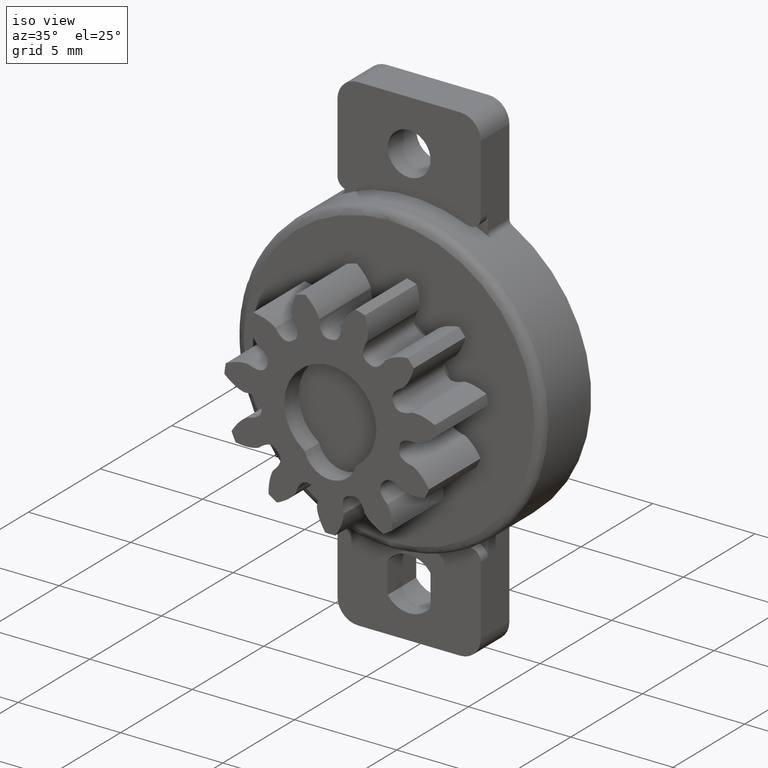
[diagram: clean part render]
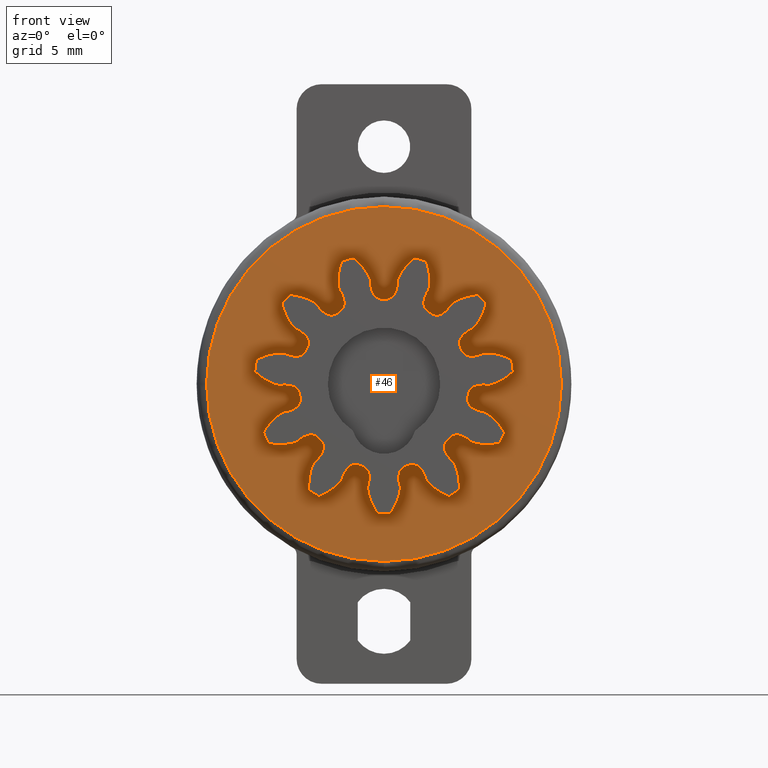
[diagram: tour spotlight — one face highlighted and labeled with its STEP entity id]
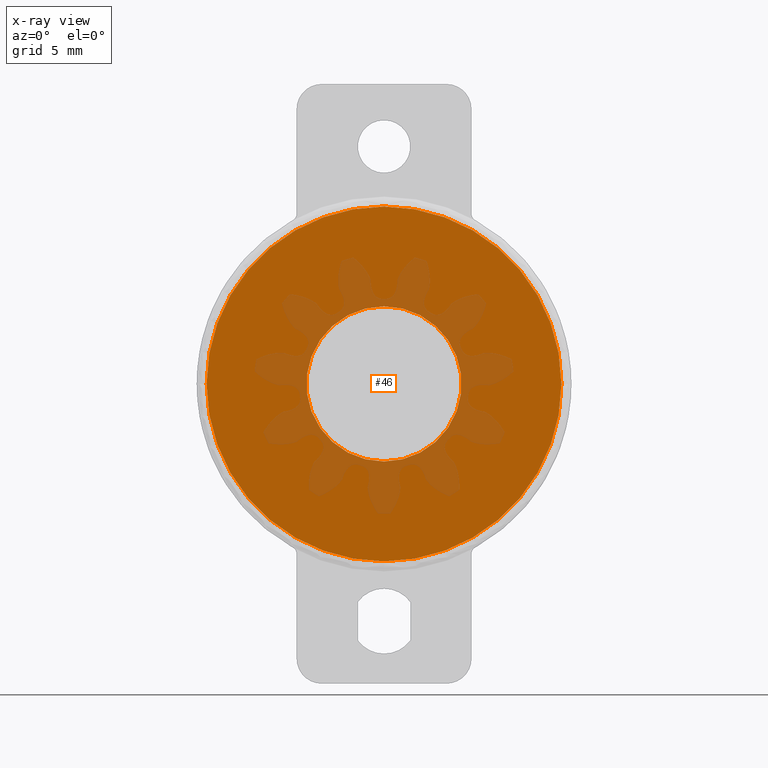
[diagram: x-ray of the same camera — body ghosted, this tour face saturated]
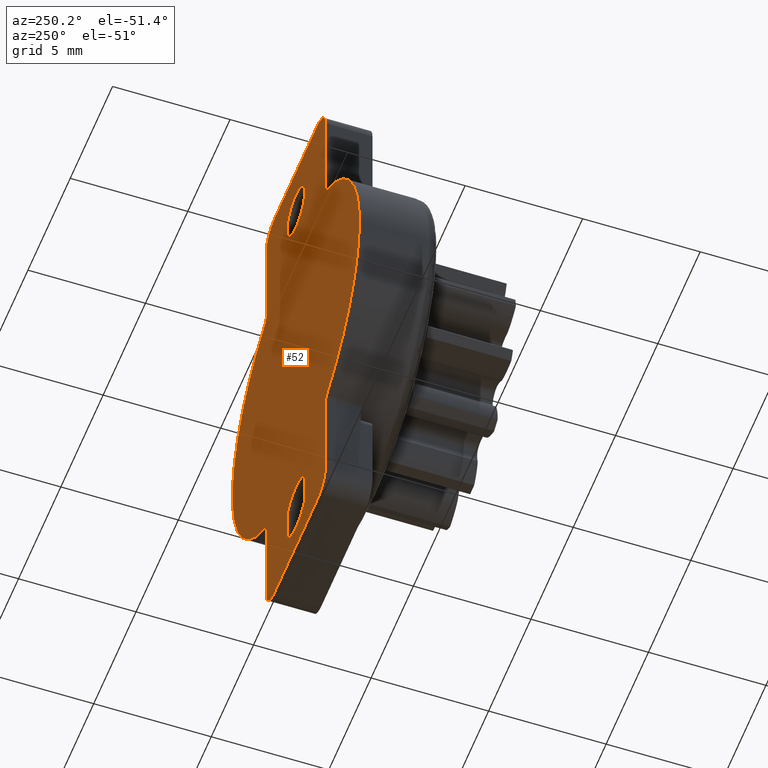
[diagram: tour spotlight — one face highlighted and labeled with its STEP entity id]
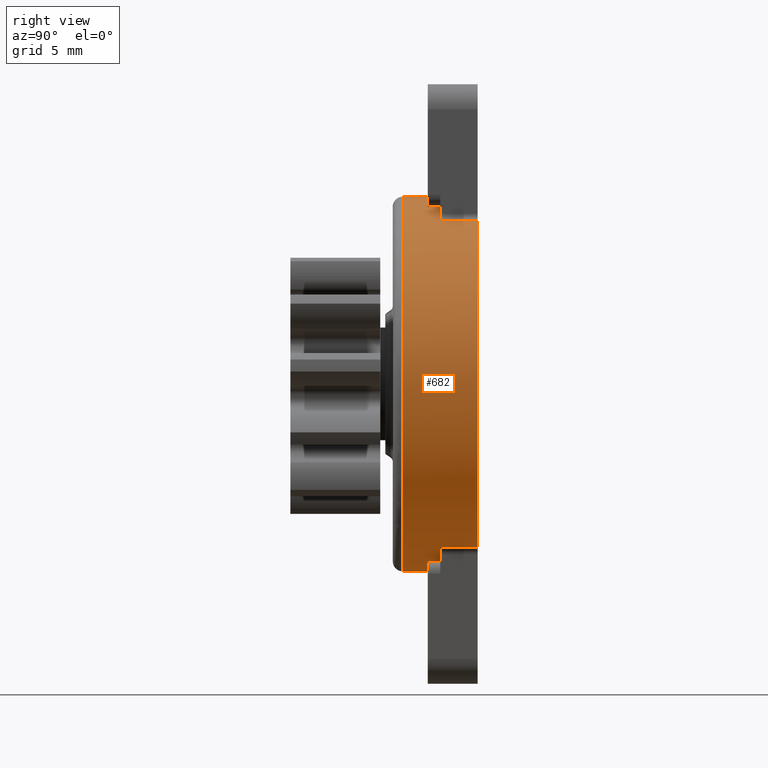
[diagram: tour spotlight — one face highlighted and labeled with its STEP entity id]
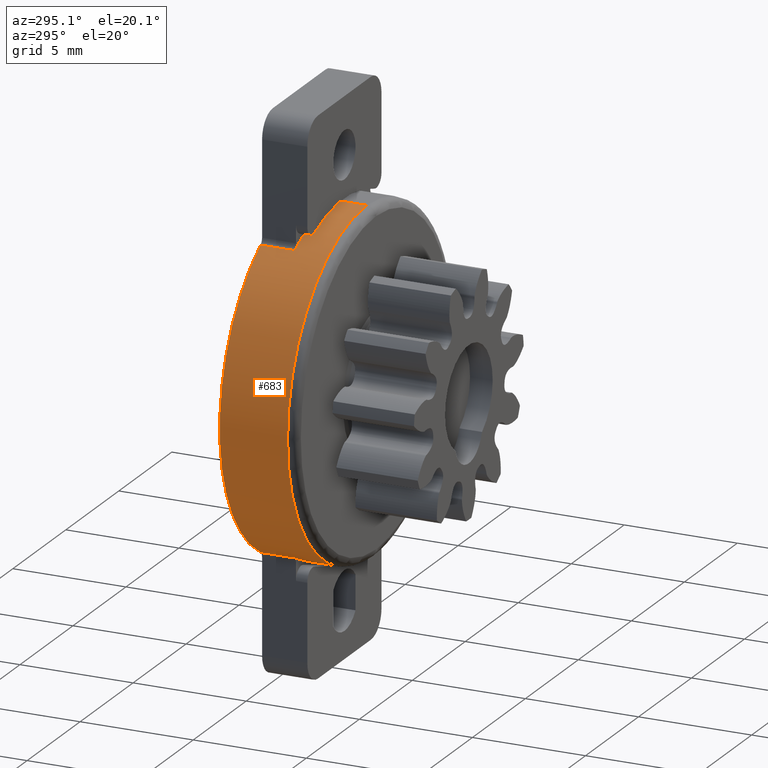
[diagram: tour spotlight — one face highlighted and labeled with its STEP entity id]
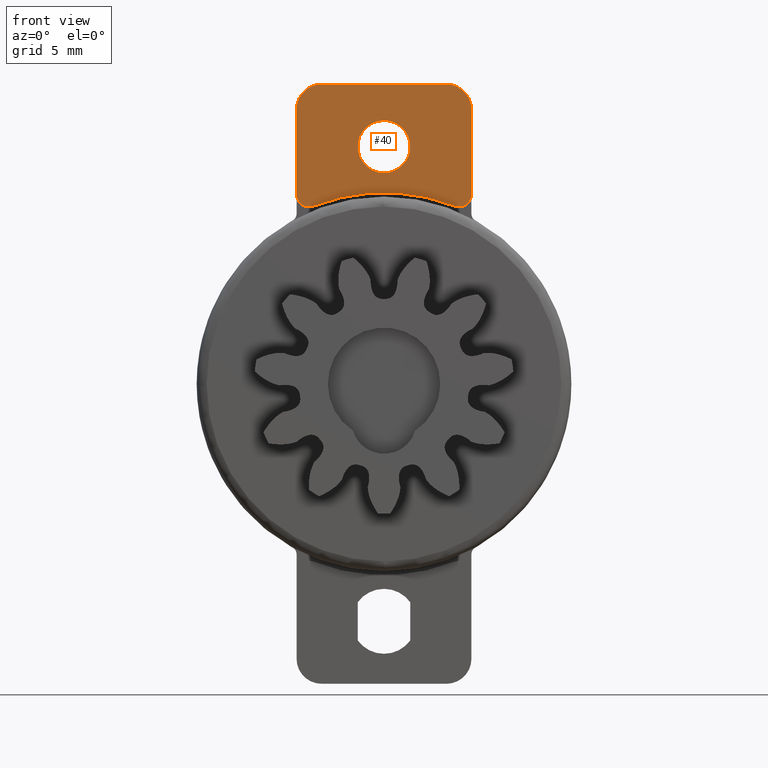
[diagram: tour spotlight — one face highlighted and labeled with its STEP entity id]
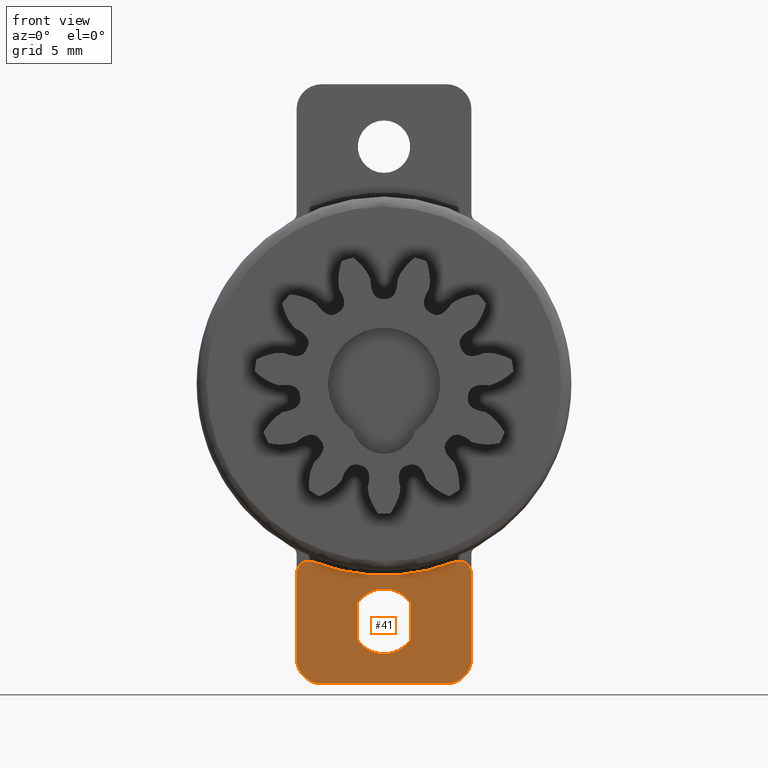
[diagram: tour spotlight — one face highlighted and labeled with its STEP entity id]
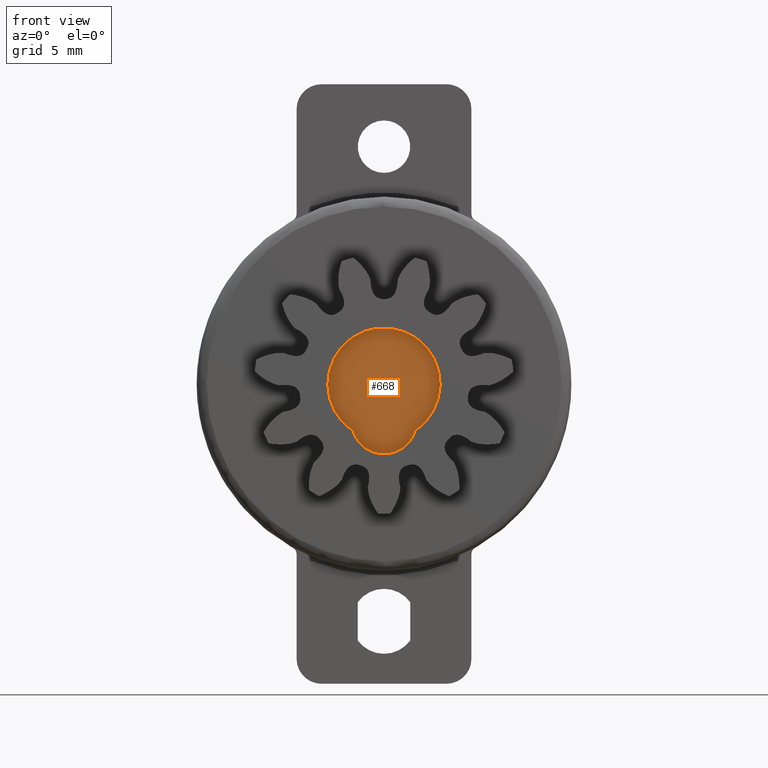
[diagram: tour spotlight — one face highlighted and labeled with its STEP entity id]
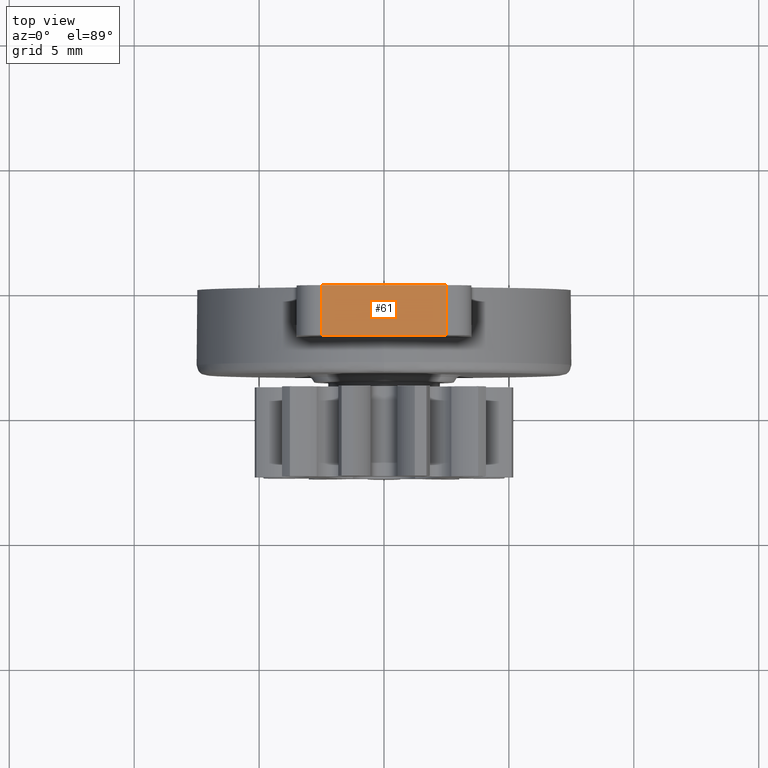
[diagram: tour spotlight — one face highlighted and labeled with its STEP entity id]
A machine part: a face-by-face anatomy tour. The part has 644 B-rep faces; the first image is the clean iso view, then the 8 largest visible faces are spotlighted one at a time (largest first), each with its STEP entity span.

Face 1 — front view, entity #46. An x-ray twin of the same camera follows (body ghosted, this face saturated) — the face is partly hidden behind the body. In plain terms, the highlighted planar face has unit normal (-0, 1, 0).
Definition (entity closure, byte-faithful):
#46=ADVANCED_FACE('',(#748,#749),#747,.F.);
#747=PLANE('',#7168);
#748=FACE_OUTER_BOUND('',#7169,.T.);
#749=FACE_BOUND('',#7170,.T.);
#7165=CARTESIAN_POINT('',(-1.47570728805E+01,-3.40000000000E+00,-9.23000000000E+00));
#7166=DIRECTION('',(-0.00000000000E+00,1.00000000000E+00,0.00000000000E+00));
#7167=DIRECTION('',(0.00000000000E+00,-0.00000000000E+00,1.00000000000E+00));
#7168=AXIS2_PLACEMENT_3D('',#7165,#7166,#7167);
#7169=EDGE_LOOP('',(#10501,#10502));
#7170=EDGE_LOOP('',(#10503,#10504));
#10501=ORIENTED_EDGE('',*,*,#14314,.T.);
#10502=ORIENTED_EDGE('',*,*,#14315,.T.);
#10503=ORIENTED_EDGE('',*,*,#14316,.F.);
#10504=ORIENTED_EDGE('',*,*,#14317,.F.);
#14314=EDGE_CURVE('',#16459,#16460,#16461,.T.);
#14315=EDGE_CURVE('',#16460,#16459,#16467,.T.);
#14316=EDGE_CURVE('',#16473,#16474,#16475,.T.);
#14317=EDGE_CURVE('',#16474,#16473,#16481,.T.);
#16459=VERTEX_POINT('',#29083);
#16460=VERTEX_POINT('',#29084);
#16461=CIRCLE('',#29088,7.10000000000E+00);
#16467=CIRCLE('',#29092,7.10000000000E+00);
#16473=VERTEX_POINT('',#29093);
#16474=VERTEX_POINT('',#29094);
#16475=CIRCLE('',#29098,3.10703740000E+00);
#16481=CIRCLE('',#29102,3.10703740000E+00);
#29083=CARTESIAN_POINT('',(0.00000000000E+00,-3.40000000000E+00,-7.10000000000E+00));
#29084=CARTESIAN_POINT('',(2.96059473233E-16,-3.40000000000E+00,7.10000000000E+00));
#29085=CARTESIAN_POINT('',(0.00000000000E+00,-3.40000000000E+00,0.00000000000E+00));
#29086=DIRECTION('',(0.00000000000E+00,-1.00000000000E+00,-0.00000000000E+00));
#29087=DIRECTION('',(-1.22460635382E-16,0.00000000000E+00,-1.00000000000E+00));
#29088=AXIS2_PLACEMENT_3D('',#29085,#29086,#29087);
#29089=CARTESIAN_POINT('',(0.00000000000E+00,-3.40000000000E+00,0.00000000000E+00));
#29090=DIRECTION('',(0.00000000000E+00,-1.00000000000E+00,-0.00000000000E+00));
#29091=DIRECTION('',(-1.22460635382E-16,0.00000000000E+00,-1.00000000000E+00));
#29092=AXIS2_PLACEMENT_3D('',#29089,#29090,#29091);
#29093=CARTESIAN_POINT('',(-1.48029736617E-16,-3.40000000000E+00,3.10703740000E+00));
#29094=CARTESIAN_POINT('',(0.00000000000E+00,-3.40000000000E+00,-3.10703740000E+00));
#29095=CARTESIAN_POINT('',(0.00000000000E+00,-3.40000000000E+00,0.00000000000E+00));
#29096=DIRECTION('',(0.00000000000E+00,-1.00000000000E+00,-0.00000000000E+00));
#29097=DIRECTION('',(-1.22460635382E-16,0.00000000000E+00,-1.00000000000E+00));
#29098=AXIS2_PLACEMENT_3D('',#29095,#29096,#29097);
#29099=CARTESIAN_POINT('',(0.00000000000E+00,-3.40000000000E+00,0.00000000000E+00));
#29100=DIRECTION('',(0.00000000000E+00,-1.00000000000E+00,-0.00000000000E+00));
#29101=DIRECTION('',(-1.22460635382E-16,0.00000000000E+00,-1.00000000000E+00));
#29102=AXIS2_PLACEMENT_3D('',#29099,#29100,#29101);

Face 2 — auxiliary view, entity #52. In plain terms, the highlighted planar face has unit normal (-0, 1, 0).
Definition (entity closure, byte-faithful):
#52=ADVANCED_FACE('',(#809,#810,#811),#808,.T.);
#808=PLANE('',#7199);
#809=FACE_OUTER_BOUND('',#7200,.T.);
#810=FACE_BOUND('',#7201,.T.);
#811=FACE_BOUND('',#7202,.T.);
#7196=CARTESIAN_POINT('',(-9.00000085831E+00,0.00000000000E+00,-1.44000002649E+01));
#7197=DIRECTION('',(-0.00000000000E+00,1.00000000000E+00,0.00000000000E+00));
#7198=DIRECTION('',(0.00000000000E+00,0.00000000000E+00,1.00000000000E+00));
#7199=AXIS2_PLACEMENT_3D('',#7196,#7197,#7198);
#7200=EDGE_LOOP('',(#10525,#10526,#10527,#10528,#10529,#10530,#10531,#10532,#10533,#10534,#10535,#10536,#10537,#10538,#10539,#10540));
#7201=EDGE_LOOP('',(#10541,#10542));
#7202=EDGE_LOOP('',(#10543,#10544,#10545,#10546));
#10525=ORIENTED_EDGE('',*,*,#14325,.F.);
#10526=ORIENTED_EDGE('',*,*,#14326,.F.);
#10527=ORIENTED_EDGE('',*,*,#14327,.F.);
#10528=ORIENTED_EDGE('',*,*,#14328,.F.);
#10529=ORIENTED_EDGE('',*,*,#14329,.F.);
#10530=ORIENTED_EDGE('',*,*,#14330,.T.);
#10531=ORIENTED_EDGE('',*,*,#14331,.F.);
#10532=ORIENTED_EDGE('',*,*,#14332,.T.);
#10533=ORIENTED_EDGE('',*,*,#14333,.F.);
#10534=ORIENTED_EDGE('',*,*,#14334,.F.);
#10535=ORIENTED_EDGE('',*,*,#14335,.F.);
#10536=ORIENTED_EDGE('',*,*,#14336,.F.);
#10537=ORIENTED_EDGE('',*,*,#14337,.F.);
#10538=ORIENTED_EDGE('',*,*,#14338,.T.);
#10539=ORIENTED_EDGE('',*,*,#14339,.F.);
#10540=ORIENTED_EDGE('',*,*,#14340,.T.);
#10541=ORIENTED_EDGE('',*,*,#14341,.T.);
#10542=ORIENTED_EDGE('',*,*,#14342,.T.);
#10543=ORIENTED_EDGE('',*,*,#14319,.T.);
#10544=ORIENTED_EDGE('',*,*,#14298,.T.);
#10545=ORIENTED_EDGE('',*,*,#14322,.T.);
#10546=ORIENTED_EDGE('',*,*,#14321,.T.);
#14298=EDGE_CURVE('',#16336,#16343,#16350,.T.);
#14319=EDGE_CURVE('',#16487,#16336,#16494,.T.);
#14321=EDGE_CURVE('',#16500,#16487,#16507,.T.);
#14322=EDGE_CURVE('',#16343,#16500,#16513,.T.);
#14325=EDGE_CURVE('',#16531,#16532,#16533,.T.);
#14326=EDGE_CURVE('',#16539,#16531,#16540,.T.);
#14327=EDGE_CURVE('',#16546,#16539,#16547,.T.);
#14328=EDGE_CURVE('',#16553,#16546,#16554,.T.);
#14329=EDGE_CURVE('',#16560,#16553,#16561,.T.);
#14330=EDGE_CURVE('',#16560,#16567,#16568,.T.);
#14331=EDGE_CURVE('',#16574,#16567,#16575,.T.);
#14332=EDGE_CURVE('',#16574,#16581,#16582,.T.);
#14333=EDGE_CURVE('',#16588,#16581,#16589,.T.);
#14334=EDGE_CURVE('',#16595,#16588,#16596,.T.);
#14335=EDGE_CURVE('',#16602,#16595,#16603,.T.);
#14336=EDGE_CURVE('',#16609,#16602,#16610,.T.);
#14337=EDGE_CURVE('',#16616,#16609,#16617,.T.);
#14338=EDGE_CURVE('',#16616,#16623,#16624,.T.);
#14339=EDGE_CURVE('',#16630,#16623,#16631,.T.);
#14340=EDGE_CURVE('',#16630,#16532,#16637,.T.);
#14341=EDGE_CURVE('',#16643,#16644,#16645,.T.);
#14342=EDGE_CURVE('',#16644,#16643,#16651,.T.);
#16336=VERTEX_POINT('',#29002);
#16343=VERTEX_POINT('',#29006);
#16350=CIRCLE('',#29013,1.30000012398E+00);
#16487=VERTEX_POINT('',#29103);
#16494=LINE('',#29107,#29108);
#16500=VERTEX_POINT('',#29110);
#16507=CIRCLE('',#29117,1.30000012398E+00);
#16513=LINE('',#29118,#29119);
#16531=VERTEX_POINT('',#29127);
#16532=VERTEX_POINT('',#29128);
#16533=LINE('',#29129,#29130);
#16539=VERTEX_POINT('',#29132);
#16540=CIRCLE('',#29136,1.00000009537E+00);
#16546=VERTEX_POINT('',#29137);
#16547=LINE('',#29138,#29139);
#16553=VERTEX_POINT('',#29141);
#16554=CIRCLE('',#29145,1.00000009537E+00);
#16560=VERTEX_POINT('',#29146);
#16561=LINE('',#29147,#29148);
#16567=VERTEX_POINT('',#29150);
#16568=CIRCLE('',#29154,3.00000000000E-01);
#16574=VERTEX_POINT('',#29155);
#16575=CIRCLE('',#29159,7.50000071526E+00);
#16581=VERTEX_POINT('',#29160);
#16582=CIRCLE('',#29164,3.00000000000E-01);
#16588=VERTEX_POINT('',#29165);
#16589=LINE('',#29166,#29167);
#16595=VERTEX_POINT('',#29169);
#16596=CIRCLE('',#29173,1.00000009537E+00);
#16602=VERTEX_POINT('',#29174);
#16603=LINE('',#29175,#29176);
#16609=VERTEX_POINT('',#29178);
#16610=CIRCLE('',#29182,1.00000009537E+00);
#16616=VERTEX_POINT('',#29183);
#16617=LINE('',#29184,#29185);
#16623=VERTEX_POINT('',#29187);
#16624=CIRCLE('',#29191,3.00000000000E-01);
#16630=VERTEX_POINT('',#29192);
#16631=CIRCLE('',#29196,7.50000071526E+00);
#16637=CIRCLE('',#29200,3.00000000000E-01);
#16643=VERTEX_POINT('',#29201);
#16644=VERTEX_POINT('',#29202);
#16645=CIRCLE('',#29206,1.05000010014E+00);
#16651=CIRCLE('',#29210,1.05000010014E+00);
#29002=CARTESIAN_POINT('',(1.05000000000E+00,0.00000000000E+00,-8.73351440000E+00));
#29006=CARTESIAN_POINT('',(-1.05000000000E+00,0.00000000000E+00,-8.73351440000E+00));
#29010=CARTESIAN_POINT('',(0.00000000000E+00,0.00000000000E+00,-9.50000000000E+00));
#29011=DIRECTION('',(0.00000000000E+00,-1.00000000000E+00,0.00000000000E+00));
#29012=DIRECTION('',(-0.00000000000E+00,-0.00000000000E+00,-1.00000000000E+00));
#29013=AXIS2_PLACEMENT_3D('',#29010,#29011,#29012);
#29103=CARTESIAN_POINT('',(1.05000007969E+00,0.00000000000E+00,-1.02664855869E+01));
#29107=CARTESIAN_POINT('',(1.05000000000E+00,0.00000000000E+00,-1.02664855869E+01));
#29108=VECTOR('',#29109,1.53297118694E+00);
#29109=DIRECTION('',(0.00000000000E+00,0.00000000000E+00,1.00000000000E+00));
#29110=CARTESIAN_POINT('',(-1.05000000000E+00,0.00000000000E+00,-1.02664856000E+01));
#29114=CARTESIAN_POINT('',(0.00000000000E+00,0.00000000000E+00,-9.50000000000E+00));
#29115=DIRECTION('',(0.00000000000E+00,-1.00000000000E+00,-0.00000000000E+00));
#29116=DIRECTION('',(8.07692291968E-01,0.00000000000E+00,-5.89604241416E-01));
#29117=AXIS2_PLACEMENT_3D('',#29114,#29115,#29116);
#29118=CARTESIAN_POINT('',(-1.05000000000E+00,0.00000000000E+00,-8.73351440000E+00));
#29119=VECTOR('',#29120,1.53297120000E+00);
#29120=DIRECTION('',(0.00000000000E+00,0.00000000000E+00,-1.00000000000E+00));
#29127=CARTESIAN_POINT('',(-3.50000009537E+00,0.00000000000E+00,1.10000000524E+01));
#29128=CARTESIAN_POINT('',(-3.50000000000E+00,0.00000000000E+00,6.81175536540E+00));
#29129=CARTESIAN_POINT('',(-3.50000000000E+00,0.00000000000E+00,1.10000000524E+01));
#29130=VECTOR('',#29131,4.18824468696E+00);
#29131=DIRECTION('',(0.00000000000E+00,0.00000000000E+00,-1.00000000000E+00));
#29132=CARTESIAN_POINT('',(-2.50000000000E+00,0.00000000000E+00,1.20000016000E+01));
#29133=CARTESIAN_POINT('',(-2.50000000000E+00,0.00000000000E+00,1.10000000000E+01));
#29134=DIRECTION('',(0.00000000000E+00,-1.00000000000E+00,0.00000000000E+00));
#29135=DIRECTION('',(-0.00000000000E+00,-0.00000000000E+00,-1.00000000000E+00));
#29136=AXIS2_PLACEMENT_3D('',#29133,#29134,#29135);
#29137=CARTESIAN_POINT('',(2.50000008727E+00,0.00000000000E+00,1.20000000954E+01));
#29138=CARTESIAN_POINT('',(2.50000008727E+00,0.00000000000E+00,1.20000016000E+01));
#29139=VECTOR('',#29140,5.00000008727E+00);
#29140=DIRECTION('',(-1.00000000000E+00,0.00000000000E+00,0.00000000000E+00));
#29141=CARTESIAN_POINT('',(3.50000000000E+00,0.00000000000E+00,1.10000000000E+01));
#29142=CARTESIAN_POINT('',(2.50000000000E+00,0.00000000000E+00,1.10000000000E+01));
#29143=DIRECTION('',(0.00000000000E+00,-1.00000000000E+00,0.00000000000E+00));
#29144=DIRECTION('',(-0.00000000000E+00,-0.00000000000E+00,-1.00000000000E+00));
#29145=AXIS2_PLACEMENT_3D('',#29142,#29143,#29144);
#29146=CARTESIAN_POINT('',(3.50000000000E+00,0.00000000000E+00,6.81175536540E+00));
#29147=CARTESIAN_POINT('',(3.50000000000E+00,0.00000000000E+00,6.81175536540E+00));
#29148=VECTOR('',#29149,4.18824463460E+00);
#29149=DIRECTION('',(0.00000000000E+00,0.00000000000E+00,1.00000000000E+00));
#29150=CARTESIAN_POINT('',(3.65384616725E+00,0.00000000000E+00,6.54976479844E+00));
#29151=CARTESIAN_POINT('',(3.80000000000E+00,0.00000000000E+00,6.81175536540E+00));
#29152=DIRECTION('',(0.00000000000E+00,-1.00000000000E+00,0.00000000000E+00));
#29153=DIRECTION('',(-0.00000000000E+00,-0.00000000000E+00,-1.00000000000E+00));
#29154=AXIS2_PLACEMENT_3D('',#29151,#29152,#29153);
#29155=CARTESIAN_POINT('',(3.65384616725E+00,0.00000000000E+00,-6.54976479844E+00));
#29156=CARTESIAN_POINT('',(0.00000000000E+00,0.00000000000E+00,0.00000000000E+00));
#29157=DIRECTION('',(0.00000000000E+00,-1.00000000000E+00,0.00000000000E+00));
#29158=DIRECTION('',(-0.00000000000E+00,-0.00000000000E+00,-1.00000000000E+00));
#29159=AXIS2_PLACEMENT_3D('',#29156,#29157,#29158);
#29160=CARTESIAN_POINT('',(3.50000000000E+00,0.00000000000E+00,-6.81175536540E+00));
#29161=CARTESIAN_POINT('',(3.80000000000E+00,0.00000000000E+00,-6.81175536540E+00));
#29162=DIRECTION('',(0.00000000000E+00,-1.00000000000E+00,0.00000000000E+00));
#29163=DIRECTION('',(-0.00000000000E+00,-0.00000000000E+00,-1.00000000000E+00));
#29164=AXIS2_PLACEMENT_3D('',#29161,#29162,#29163);
#29165=CARTESIAN_POINT('',(3.50000009537E+00,0.00000000000E+00,-1.09999999476E+01));
#29166=CARTESIAN_POINT('',(3.50000000000E+00,0.00000000000E+00,-1.09999999476E+01));
#29167=VECTOR('',#29168,4.18824458224E+00);
#29168=DIRECTION('',(0.00000000000E+00,0.00000000000E+00,1.00000000000E+00));
#29169=CARTESIAN_POINT('',(2.50000000000E+00,0.00000000000E+00,-1.20000000000E+01));
#29170=CARTESIAN_POINT('',(2.50000000000E+00,0.00000000000E+00,-1.10000000000E+01));
#29171=DIRECTION('',(0.00000000000E+00,-1.00000000000E+00,0.00000000000E+00));
#29172=DIRECTION('',(-0.00000000000E+00,-0.00000000000E+00,-1.00000000000E+00));
#29173=AXIS2_PLACEMENT_3D('',#29170,#29171,#29172);
#29174=CARTESIAN_POINT('',(-2.50000000000E+00,0.00000000000E+00,-1.20000000954E+01));
#29175=CARTESIAN_POINT('',(-2.50000000000E+00,0.00000000000E+00,-1.20000000000E+01));
#29176=VECTOR('',#29177,5.00000000000E+00);
#29177=DIRECTION('',(1.00000000000E+00,0.00000000000E+00,0.00000000000E+00));
#29178=CARTESIAN_POINT('',(-3.50000000000E+00,0.00000000000E+00,-1.10000000000E+01));
#29179=CARTESIAN_POINT('',(-2.50000000000E+00,0.00000000000E+00,-1.10000000000E+01));
#29180=DIRECTION('',(0.00000000000E+00,-1.00000000000E+00,0.00000000000E+00));
#29181=DIRECTION('',(-0.00000000000E+00,-0.00000000000E+00,-1.00000000000E+00));
#29182=AXIS2_PLACEMENT_3D('',#29179,#29180,#29181);
#29183=CARTESIAN_POINT('',(-3.50000000000E+00,0.00000000000E+00,-6.81175536540E+00));
#29184=CARTESIAN_POINT('',(-3.50000000000E+00,0.00000000000E+00,-6.81175536540E+00));
#29185=VECTOR('',#29186,4.18824463460E+00);
#29186=DIRECTION('',(0.00000000000E+00,0.00000000000E+00,-1.00000000000E+00));
#29187=CARTESIAN_POINT('',(-3.65384616725E+00,0.00000000000E+00,-6.54976479844E+00));
#29188=CARTESIAN_POINT('',(-3.80000000000E+00,0.00000000000E+00,-6.81175536540E+00));
#29189=DIRECTION('',(0.00000000000E+00,-1.00000000000E+00,0.00000000000E+00));
#29190=DIRECTION('',(-0.00000000000E+00,-0.00000000000E+00,-1.00000000000E+00));
#29191=AXIS2_PLACEMENT_3D('',#29188,#29189,#29190);
#29192=CARTESIAN_POINT('',(-3.65384616725E+00,0.00000000000E+00,6.54976479844E+00));
#29193=CARTESIAN_POINT('',(0.00000000000E+00,0.00000000000E+00,0.00000000000E+00));
#29194=DIRECTION('',(0.00000000000E+00,-1.00000000000E+00,0.00000000000E+00));
#29195=DIRECTION('',(-0.00000000000E+00,-0.00000000000E+00,-1.00000000000E+00));
#29196=AXIS2_PLACEMENT_3D('',#29193,#29194,#29195);
#29197=CARTESIAN_POINT('',(-3.80000000000E+00,0.00000000000E+00,6.81175536540E+00));
#29198=DIRECTION('',(0.00000000000E+00,-1.00000000000E+00,0.00000000000E+00));
#29199=DIRECTION('',(-0.00000000000E+00,-0.00000000000E+00,-1.00000000000E+00));
#29200=AXIS2_PLACEMENT_3D('',#29197,#29198,#29199);
#29201=CARTESIAN_POINT('',(0.00000000000E+00,0.00000000000E+00,1.05500001001E+01));
#29202=CARTESIAN_POINT('',(2.59052039079E-16,0.00000000000E+00,8.44999989986E+00));
#29203=CARTESIAN_POINT('',(0.00000000000E+00,0.00000000000E+00,9.50000000000E+00));
#29204=DIRECTION('',(0.00000000000E+00,-1.00000000000E+00,0.00000000000E+00));
#29205=DIRECTION('',(-1.22460635382E-16,0.00000000000E+00,1.00000000000E+00));
#29206=AXIS2_PLACEMENT_3D('',#29203,#29204,#29205);
#29207=CARTESIAN_POINT('',(0.00000000000E+00,0.00000000000E+00,9.50000000000E+00));
#29208=DIRECTION('',(0.00000000000E+00,-1.00000000000E+00,0.00000000000E+00));
#29209=DIRECTION('',(-1.22460635382E-16,0.00000000000E+00,1.00000000000E+00));
#29210=AXIS2_PLACEMENT_3D('',#29207,#29208,#29209);

Face 3 — right view, entity #682. In plain terms, the highlighted cylindrical surface (partial cylindrical patch) has radius 7.5 mm, axis along (-0, 1, 0).
Definition (entity closure, byte-faithful):
#682=ADVANCED_FACE('',(#7113),#7112,.T.);
#7112=CYLINDRICAL_SURFACE('',#10451,7.50000071526E+00);
#7113=FACE_OUTER_BOUND('',#10452,.T.);
#10448=CARTESIAN_POINT('',(0.00000000000E+00,9.98500000000E+02,0.00000000000E+00));
#10449=DIRECTION('',(-0.00000000000E+00,1.00000000000E+00,0.00000000000E+00));
#10450=DIRECTION('',(0.00000000000E+00,0.00000000000E+00,1.00000000000E+00));
#10451=AXIS2_PLACEMENT_3D('',#10448,#10449,#10450);
#10452=EDGE_LOOP('',(#14258,#14259,#14260,#14261,#14262,#14263,#14264,#14265));
#14258=ORIENTED_EDGE('',*,*,#14303,.T.);
#14259=ORIENTED_EDGE('',*,*,#14358,.T.);
#14260=ORIENTED_EDGE('',*,*,#14331,.T.);
#14261=ORIENTED_EDGE('',*,*,#14361,.T.);
#14262=ORIENTED_EDGE('',*,*,#14345,.T.);
#14263=ORIENTED_EDGE('',*,*,#16180,.F.);
#14264=ORIENTED_EDGE('',*,*,#16177,.F.);
#14265=ORIENTED_EDGE('',*,*,#16181,.T.);
#14303=EDGE_CURVE('',#16384,#16377,#16385,.T.);
#14331=EDGE_CURVE('',#16574,#16567,#16575,.T.);
#14345=EDGE_CURVE('',#16672,#16665,#16673,.T.);
#14358=EDGE_CURVE('',#16377,#16574,#16756,.T.);
#14361=EDGE_CURVE('',#16567,#16672,#16774,.T.);
#16177=EDGE_CURVE('',#28857,#28850,#28870,.T.);
#16180=EDGE_CURVE('',#28850,#16665,#28888,.T.);
#16181=EDGE_CURVE('',#28857,#16384,#28894,.T.);
#16377=VERTEX_POINT('',#29027);
#16384=VERTEX_POINT('',#29032);
#16385=CIRCLE('',#29036,7.50000002407E+00);
#16567=VERTEX_POINT('',#29150);
#16574=VERTEX_POINT('',#29155);
#16575=CIRCLE('',#29159,7.50000071526E+00);
#16665=VERTEX_POINT('',#29217);
#16672=VERTEX_POINT('',#29222);
#16673=CIRCLE('',#29226,7.50000002407E+00);
#16756=LINE('',#29272,#29273);
#16774=LINE('',#29281,#29282);
#28850=VERTEX_POINT('',#36012);
#28857=VERTEX_POINT('',#36016);
#28870=CIRCLE('',#36027,7.50000002407E+00);
#28888=(BOUNDED_CURVE() B_SPLINE_CURVE(1,(#36032,#36033),.UNSPECIFIED.,.F.,.F.) B_SPLINE_CURVE_WITH_KNOTS((2,2),(8.33333233997E-02,5.00000007000E-01),.UNSPECIFIED.) CURVE() GEOMETRIC_REPRESENTATION_ITEM() RATIONAL_B_SPLINE_CURVE((1.00000000000E+00,1.00000000000E+00)) REPRESENTATION_ITEM('') );
#28894=(BOUNDED_CURVE() B_SPLINE_CURVE(1,(#36034,#36035),.UNSPECIFIED.,.F.,.F.) B_SPLINE_CURVE_WITH_KNOTS((2,2),(8.33333333333E-02,5.00000011100E-01),.UNSPECIFIED.) CURVE() GEOMETRIC_REPRESENTATION_ITEM() RATIONAL_B_SPLINE_CURVE((7.50000000000E-01,7.50000000000E-01)) REPRESENTATION_ITEM('') );
#29027=CARTESIAN_POINT('',(3.65384583052E+00,-1.49999992008E+00,-6.54976419483E+00));
#29032=CARTESIAN_POINT('',(-1.71430656871E-08,-1.49999992008E+00,-7.50000002407E+00));
#29033=CARTESIAN_POINT('',(0.00000000000E+00,-1.49999992008E+00,0.00000000000E+00));
#29034=DIRECTION('',(0.00000000000E+00,-1.00000000000E+00,0.00000000000E+00));
#29035=DIRECTION('',(-0.00000000000E+00,-0.00000000000E+00,1.00000000000E+00));
#29036=AXIS2_PLACEMENT_3D('',#29033,#29034,#29035);
#29150=CARTESIAN_POINT('',(3.65384616725E+00,0.00000000000E+00,6.54976479844E+00));
#29155=CARTESIAN_POINT('',(3.65384616725E+00,0.00000000000E+00,-6.54976479844E+00));
#29156=CARTESIAN_POINT('',(0.00000000000E+00,0.00000000000E+00,0.00000000000E+00));
#29157=DIRECTION('',(0.00000000000E+00,-1.00000000000E+00,0.00000000000E+00));
#29158=DIRECTION('',(-0.00000000000E+00,-0.00000000000E+00,-1.00000000000E+00));
#29159=AXIS2_PLACEMENT_3D('',#29156,#29157,#29158);
#29217=CARTESIAN_POINT('',(0.00000000000E+00,-1.49999992008E+00,7.50000002407E+00));
#29222=CARTESIAN_POINT('',(3.65384616725E+00,-1.50000000000E+00,6.54976479844E+00));
#29223=CARTESIAN_POINT('',(0.00000000000E+00,-1.49999992008E+00,0.00000000000E+00));
#29224=DIRECTION('',(0.00000000000E+00,-1.00000000000E+00,0.00000000000E+00));
#29225=DIRECTION('',(4.87179442505E-01,0.00000000000E+00,8.73301889841E-01));
#29226=AXIS2_PLACEMENT_3D('',#29223,#29224,#29225);
#29272=CARTESIAN_POINT('',(3.65384616725E+00,-1.49999992008E+00,-6.54976479844E+00));
#29273=VECTOR('',#29274,1.49999992008E+00);
#29274=DIRECTION('',(0.00000000000E+00,1.00000000000E+00,0.00000000000E+00));
#29281=CARTESIAN_POINT('',(3.65384616725E+00,0.00000000000E+00,6.54976479844E+00));
#29282=VECTOR('',#29283,1.50000000000E+00);
#29283=DIRECTION('',(0.00000000000E+00,-1.00000000000E+00,0.00000000000E+00));
#36012=CARTESIAN_POINT('',(8.88178419700E-16,-2.99999992008E+00,7.50000002407E+00));
#36016=CARTESIAN_POINT('',(0.00000000000E+00,-2.99999992008E+00,-7.50000002407E+00));
#36024=CARTESIAN_POINT('',(0.00000000000E+00,-2.99999992008E+00,0.00000000000E+00));
#36025=DIRECTION('',(0.00000000000E+00,-1.00000000000E+00,-0.00000000000E+00));
#36026=DIRECTION('',(-1.22460635382E-16,0.00000000000E+00,-1.00000000000E+00));
#36027=AXIS2_PLACEMENT_3D('',#36024,#36025,#36026);
#36032=CARTESIAN_POINT('',(0.00000000000E+00,-2.99999995584E+00,7.50000071526E+00));
#36033=CARTESIAN_POINT('',(0.00000000000E+00,-1.49999993484E+00,7.50000071526E+00));
#36034=CARTESIAN_POINT('',(0.00000000000E+00,-2.99999992008E+00,-7.50000071526E+00));
#36035=CARTESIAN_POINT('',(0.00000000000E+00,-1.49999992008E+00,-7.50000071526E+00));

Face 4 — auxiliary view, entity #683. In plain terms, the highlighted cylindrical surface (partial cylindrical patch) has radius 7.5 mm, axis along (-0, 1, 0).
Definition (entity closure, byte-faithful):
#683=ADVANCED_FACE('',(#7123),#7122,.T.);
#7122=CYLINDRICAL_SURFACE('',#10456,7.50000071526E+00);
#7123=FACE_OUTER_BOUND('',#10457,.T.);
#10453=CARTESIAN_POINT('',(0.00000000000E+00,9.98500000000E+02,0.00000000000E+00));
#10454=DIRECTION('',(-0.00000000000E+00,1.00000000000E+00,0.00000000000E+00));
#10455=DIRECTION('',(0.00000000000E+00,0.00000000000E+00,1.00000000000E+00));
#10456=AXIS2_PLACEMENT_3D('',#10453,#10454,#10455);
#10457=EDGE_LOOP('',(#14266,#14267,#14268,#14269,#14270,#14271,#14272,#14273));
#14266=ORIENTED_EDGE('',*,*,#16175,.F.);
#14267=ORIENTED_EDGE('',*,*,#16180,.T.);
#14268=ORIENTED_EDGE('',*,*,#14344,.T.);
#14269=ORIENTED_EDGE('',*,*,#14354,.T.);
#14270=ORIENTED_EDGE('',*,*,#14339,.T.);
#14271=ORIENTED_EDGE('',*,*,#14357,.T.);
#14272=ORIENTED_EDGE('',*,*,#14304,.T.);
#14273=ORIENTED_EDGE('',*,*,#16181,.F.);
#14304=EDGE_CURVE('',#16391,#16384,#16392,.T.);
#14339=EDGE_CURVE('',#16630,#16623,#16631,.T.);
#14344=EDGE_CURVE('',#16665,#16658,#16666,.T.);
#14354=EDGE_CURVE('',#16658,#16630,#16732,.T.);
#14357=EDGE_CURVE('',#16623,#16391,#16750,.T.);
#16175=EDGE_CURVE('',#28850,#28857,#28858,.T.);
#16180=EDGE_CURVE('',#28850,#16665,#28888,.T.);
#16181=EDGE_CURVE('',#28857,#16384,#28894,.T.);
#16384=VERTEX_POINT('',#29032);
#16391=VERTEX_POINT('',#29037);
#16392=CIRCLE('',#29041,7.50000002407E+00);
#16623=VERTEX_POINT('',#29187);
#16630=VERTEX_POINT('',#29192);
#16631=CIRCLE('',#29196,7.50000071526E+00);
#16658=VERTEX_POINT('',#29212);
#16665=VERTEX_POINT('',#29217);
#16666=CIRCLE('',#29221,7.50000002407E+00);
#16732=LINE('',#29260,#29261);
#16750=LINE('',#29269,#29270);
#28850=VERTEX_POINT('',#36012);
#28857=VERTEX_POINT('',#36016);
#28858=CIRCLE('',#36020,7.50000002407E+00);
#28888=(BOUNDED_CURVE() B_SPLINE_CURVE(1,(#36032,#36033),.UNSPECIFIED.,.F.,.F.) B_SPLINE_CURVE_WITH_KNOTS((2,2),(8.33333233997E-02,5.00000007000E-01),.UNSPECIFIED.) CURVE() GEOMETRIC_REPRESENTATION_ITEM() RATIONAL_B_SPLINE_CURVE((1.00000000000E+00,1.00000000000E+00)) REPRESENTATION_ITEM('') );
#28894=(BOUNDED_CURVE() B_SPLINE_CURVE(1,(#36034,#36035),.UNSPECIFIED.,.F.,.F.) B_SPLINE_CURVE_WITH_KNOTS((2,2),(8.33333333333E-02,5.00000011100E-01),.UNSPECIFIED.) CURVE() GEOMETRIC_REPRESENTATION_ITEM() RATIONAL_B_SPLINE_CURVE((7.50000000000E-01,7.50000000000E-01)) REPRESENTATION_ITEM('') );
#29032=CARTESIAN_POINT('',(-1.71430656871E-08,-1.49999992008E+00,-7.50000002407E+00));
#29037=CARTESIAN_POINT('',(-3.65384583052E+00,-1.49999992008E+00,-6.54976419483E+00));
#29038=CARTESIAN_POINT('',(0.00000000000E+00,-1.49999992008E+00,0.00000000000E+00));
#29039=DIRECTION('',(0.00000000000E+00,-1.00000000000E+00,0.00000000000E+00));
#29040=DIRECTION('',(-0.00000000000E+00,-0.00000000000E+00,1.00000000000E+00));
#29041=AXIS2_PLACEMENT_3D('',#29038,#29039,#29040);
#29187=CARTESIAN_POINT('',(-3.65384616725E+00,0.00000000000E+00,-6.54976479844E+00));
#29192=CARTESIAN_POINT('',(-3.65384616725E+00,0.00000000000E+00,6.54976479844E+00));
#29193=CARTESIAN_POINT('',(0.00000000000E+00,0.00000000000E+00,0.00000000000E+00));
#29194=DIRECTION('',(0.00000000000E+00,-1.00000000000E+00,0.00000000000E+00));
#29195=DIRECTION('',(-0.00000000000E+00,-0.00000000000E+00,-1.00000000000E+00));
#29196=AXIS2_PLACEMENT_3D('',#29193,#29194,#29195);
#29212=CARTESIAN_POINT('',(-3.65384583052E+00,-1.49999992008E+00,6.54976419483E+00));
#29217=CARTESIAN_POINT('',(0.00000000000E+00,-1.49999992008E+00,7.50000002407E+00));
#29218=CARTESIAN_POINT('',(0.00000000000E+00,-1.49999992008E+00,0.00000000000E+00));
#29219=DIRECTION('',(0.00000000000E+00,-1.00000000000E+00,0.00000000000E+00));
#29220=DIRECTION('',(4.87179442505E-01,0.00000000000E+00,8.73301889841E-01));
#29221=AXIS2_PLACEMENT_3D('',#29218,#29219,#29220);
#29260=CARTESIAN_POINT('',(-3.65384616725E+00,-1.49999992008E+00,6.54976479844E+00));
#29261=VECTOR('',#29262,1.49999992008E+00);
#29262=DIRECTION('',(0.00000000000E+00,1.00000000000E+00,0.00000000000E+00));
#29269=CARTESIAN_POINT('',(-3.65384616725E+00,0.00000000000E+00,-6.54976479844E+00));
#29270=VECTOR('',#29271,1.49999992008E+00);
#29271=DIRECTION('',(0.00000000000E+00,-1.00000000000E+00,0.00000000000E+00));
#36012=CARTESIAN_POINT('',(8.88178419700E-16,-2.99999992008E+00,7.50000002407E+00));
#36016=CARTESIAN_POINT('',(0.00000000000E+00,-2.99999992008E+00,-7.50000002407E+00));
#36017=CARTESIAN_POINT('',(0.00000000000E+00,-2.99999992008E+00,0.00000000000E+00));
#36018=DIRECTION('',(0.00000000000E+00,-1.00000000000E+00,-0.00000000000E+00));
#36019=DIRECTION('',(-1.22460635382E-16,0.00000000000E+00,-1.00000000000E+00));
#36020=AXIS2_PLACEMENT_3D('',#36017,#36018,#36019);
#36032=CARTESIAN_POINT('',(0.00000000000E+00,-2.99999995584E+00,7.50000071526E+00));
#36033=CARTESIAN_POINT('',(0.00000000000E+00,-1.49999993484E+00,7.50000071526E+00));
#36034=CARTESIAN_POINT('',(0.00000000000E+00,-2.99999992008E+00,-7.50000071526E+00));
#36035=CARTESIAN_POINT('',(0.00000000000E+00,-1.49999992008E+00,-7.50000071526E+00));

Face 5 — front view, entity #40. In plain terms, the highlighted planar face has unit normal (0, -1, 0).
Definition (entity closure, byte-faithful):
#40=ADVANCED_FACE('',(#685,#686),#684,.T.);
#684=PLANE('',#7135);
#685=FACE_OUTER_BOUND('',#7136,.T.);
#686=FACE_BOUND('',#7137,.T.);
#7132=CARTESIAN_POINT('',(-4.20000011444E+00,-2.00000000000E+00,1.25148186929E+01));
#7133=DIRECTION('',(0.00000000000E+00,-1.00000000000E+00,0.00000000000E+00));
#7134=DIRECTION('',(0.00000000000E+00,0.00000000000E+00,-1.00000000000E+00));
#7135=AXIS2_PLACEMENT_3D('',#7132,#7133,#7134);
#7136=EDGE_LOOP('',(#10458,#10459,#10460,#10461,#10462,#10463,#10464,#10465));
#7137=EDGE_LOOP('',(#10466,#10467));
#10458=ORIENTED_EDGE('',*,*,#14274,.T.);
#10459=ORIENTED_EDGE('',*,*,#14275,.T.);
#10460=ORIENTED_EDGE('',*,*,#14276,.T.);
#10461=ORIENTED_EDGE('',*,*,#14277,.F.);
#10462=ORIENTED_EDGE('',*,*,#14278,.T.);
#10463=ORIENTED_EDGE('',*,*,#14279,.T.);
#10464=ORIENTED_EDGE('',*,*,#14280,.T.);
#10465=ORIENTED_EDGE('',*,*,#14281,.T.);
#10466=ORIENTED_EDGE('',*,*,#14282,.F.);
#10467=ORIENTED_EDGE('',*,*,#14283,.F.);
#14274=EDGE_CURVE('',#16182,#16183,#16184,.T.);
#14275=EDGE_CURVE('',#16183,#16190,#16191,.T.);
#14276=EDGE_CURVE('',#16190,#16197,#16198,.T.);
#14277=EDGE_CURVE('',#16204,#16197,#16205,.T.);
#14278=EDGE_CURVE('',#16204,#16211,#16212,.T.);
#14279=EDGE_CURVE('',#16211,#16218,#16219,.T.);
#14280=EDGE_CURVE('',#16218,#16225,#16226,.T.);
#14281=EDGE_CURVE('',#16225,#16182,#16232,.T.);
#14282=EDGE_CURVE('',#16238,#16239,#16240,.T.);
#14283=EDGE_CURVE('',#16239,#16238,#16246,.T.);
#16182=VERTEX_POINT('',#28900);
#16183=VERTEX_POINT('',#28901);
#16184=CIRCLE('',#28905,1.00000009537E+00);
#16190=VERTEX_POINT('',#28906);
#16191=LINE('',#28907,#28908);
#16197=VERTEX_POINT('',#28910);
#16198=CIRCLE('',#28914,5.00061204412E-01);
#16204=VERTEX_POINT('',#28915);
#16205=CIRCLE('',#28919,7.65862092934E+00);
#16211=VERTEX_POINT('',#28920);
#16212=CIRCLE('',#28924,5.00061150665E-01);
#16218=VERTEX_POINT('',#28925);
#16219=LINE('',#28926,#28927);
#16225=VERTEX_POINT('',#28929);
#16226=CIRCLE('',#28933,1.00000009537E+00);
#16232=LINE('',#28934,#28935);
#16238=VERTEX_POINT('',#28937);
#16239=VERTEX_POINT('',#28938);
#16240=CIRCLE('',#28942,1.05000010014E+00);
#16246=CIRCLE('',#28946,1.05000010014E+00);
#28900=CARTESIAN_POINT('',(-2.50000000000E+00,-2.00000000000E+00,1.20000016000E+01));
#28901=CARTESIAN_POINT('',(-3.50000000000E+00,-2.00000000000E+00,1.10000000000E+01));
#28902=CARTESIAN_POINT('',(-2.50000000000E+00,-2.00000000000E+00,1.10000000000E+01));
#28903=DIRECTION('',(0.00000000000E+00,-1.00000000000E+00,0.00000000000E+00));
#28904=DIRECTION('',(-0.00000000000E+00,-0.00000000000E+00,1.00000000000E+00));
#28905=AXIS2_PLACEMENT_3D('',#28902,#28903,#28904);
#28906=CARTESIAN_POINT('',(-3.50000000000E+00,-2.00000000000E+00,7.58711540000E+00));
#28907=CARTESIAN_POINT('',(-3.50000000000E+00,-2.00000000000E+00,1.10000000000E+01));
#28908=VECTOR('',#28909,3.41288460000E+00);
#28909=DIRECTION('',(0.00000000000E+00,0.00000000000E+00,-1.00000000000E+00));
#28910=CARTESIAN_POINT('',(-2.81616939420E+00,-2.00000000000E+00,7.12204549636E+00));
#28911=CARTESIAN_POINT('',(-2.99993879559E+00,-2.00000000000E+00,7.58711540000E+00));
#28912=DIRECTION('',(0.00000000000E+00,-1.00000000000E+00,0.00000000000E+00));
#28913=DIRECTION('',(-0.00000000000E+00,-0.00000000000E+00,1.00000000000E+00));
#28914=AXIS2_PLACEMENT_3D('',#28911,#28912,#28913);
#28915=CARTESIAN_POINT('',(2.81617049539E+00,-2.00000000000E+00,7.12205435813E+00));
#28916=CARTESIAN_POINT('',(0.00000000000E+00,-2.00000000000E+00,0.00000000000E+00));
#28917=DIRECTION('',(0.00000000000E+00,-1.00000000000E+00,0.00000000000E+00));
#28918=DIRECTION('',(3.67712480010E-01,0.00000000000E+00,9.29939531391E-01));
#28919=AXIS2_PLACEMENT_3D('',#28916,#28917,#28918);
#28920=CARTESIAN_POINT('',(3.50000000000E+00,-2.00000000000E+00,7.58711540000E+00));
#28921=CARTESIAN_POINT('',(2.99993884933E+00,-2.00000000000E+00,7.58711540000E+00));
#28922=DIRECTION('',(0.00000000000E+00,-1.00000000000E+00,0.00000000000E+00));
#28923=DIRECTION('',(-0.00000000000E+00,-0.00000000000E+00,1.00000000000E+00));
#28924=AXIS2_PLACEMENT_3D('',#28921,#28922,#28923);
#28925=CARTESIAN_POINT('',(3.50000000000E+00,-2.00000000000E+00,1.10000000000E+01));
#28926=CARTESIAN_POINT('',(3.50000000000E+00,-2.00000000000E+00,7.58711540000E+00));
#28927=VECTOR('',#28928,3.41288460000E+00);
#28928=DIRECTION('',(0.00000000000E+00,0.00000000000E+00,1.00000000000E+00));
#28929=CARTESIAN_POINT('',(2.50000008727E+00,-2.00000000000E+00,1.20000000954E+01));
#28930=CARTESIAN_POINT('',(2.50000000000E+00,-2.00000000000E+00,1.10000000000E+01));
#28931=DIRECTION('',(0.00000000000E+00,-1.00000000000E+00,0.00000000000E+00));
#28932=DIRECTION('',(-0.00000000000E+00,-0.00000000000E+00,1.00000000000E+00));
#28933=AXIS2_PLACEMENT_3D('',#28930,#28931,#28932);
#28934=CARTESIAN_POINT('',(2.50000008727E+00,-2.00000000000E+00,1.20000016000E+01));
#28935=VECTOR('',#28936,5.00000008727E+00);
#28936=DIRECTION('',(-1.00000000000E+00,0.00000000000E+00,0.00000000000E+00));
#28937=CARTESIAN_POINT('',(7.40148683083E-17,-2.00000000001E+00,1.05500001001E+01));
#28938=CARTESIAN_POINT('',(0.00000000000E+00,-2.00000000001E+00,8.44999989986E+00));
#28939=CARTESIAN_POINT('',(0.00000000000E+00,-2.00000000001E+00,9.50000000000E+00));
#28940=DIRECTION('',(0.00000000000E+00,-1.00000000000E+00,-0.00000000000E+00));
#28941=DIRECTION('',(-1.22460635382E-16,0.00000000000E+00,-1.00000000000E+00));
#28942=AXIS2_PLACEMENT_3D('',#28939,#28940,#28941);
#28943=CARTESIAN_POINT('',(0.00000000000E+00,-2.00000000001E+00,9.50000000000E+00));
#28944=DIRECTION('',(0.00000000000E+00,-1.00000000000E+00,-0.00000000000E+00));
#28945=DIRECTION('',(-1.22460635382E-16,0.00000000000E+00,-1.00000000000E+00));
#28946=AXIS2_PLACEMENT_3D('',#28943,#28944,#28945);

Face 6 — front view, entity #41. In plain terms, the highlighted planar face has unit normal (0, -1, 0).
Definition (entity closure, byte-faithful):
#41=ADVANCED_FACE('',(#696,#697),#695,.T.);
#695=PLANE('',#7141);
#696=FACE_OUTER_BOUND('',#7142,.T.);
#697=FACE_BOUND('',#7143,.T.);
#7138=CARTESIAN_POINT('',(-4.20000017727E+00,-2.00000000000E+00,-6.33701570402E+00));
#7139=DIRECTION('',(0.00000000000E+00,-1.00000000000E+00,0.00000000000E+00));
#7140=DIRECTION('',(0.00000000000E+00,0.00000000000E+00,-1.00000000000E+00));
#7141=AXIS2_PLACEMENT_3D('',#7138,#7139,#7140);
#7142=EDGE_LOOP('',(#10468,#10469,#10470,#10471,#10472,#10473,#10474,#10475));
#7143=EDGE_LOOP('',(#10476,#10477,#10478,#10479));
#10468=ORIENTED_EDGE('',*,*,#14284,.T.);
#10469=ORIENTED_EDGE('',*,*,#14285,.T.);
#10470=ORIENTED_EDGE('',*,*,#14286,.T.);
#10471=ORIENTED_EDGE('',*,*,#14287,.T.);
#10472=ORIENTED_EDGE('',*,*,#14288,.T.);
#10473=ORIENTED_EDGE('',*,*,#14289,.T.);
#10474=ORIENTED_EDGE('',*,*,#14290,.F.);
#10475=ORIENTED_EDGE('',*,*,#14291,.T.);
#10476=ORIENTED_EDGE('',*,*,#14292,.F.);
#10477=ORIENTED_EDGE('',*,*,#14293,.F.);
#10478=ORIENTED_EDGE('',*,*,#14294,.F.);
#10479=ORIENTED_EDGE('',*,*,#14295,.F.);
#14284=EDGE_CURVE('',#16252,#16253,#16254,.T.);
#14285=EDGE_CURVE('',#16253,#16260,#16261,.T.);
#14286=EDGE_CURVE('',#16260,#16267,#16268,.T.);
#14287=EDGE_CURVE('',#16267,#16274,#16275,.T.);
#14288=EDGE_CURVE('',#16274,#16281,#16282,.T.);
#14289=EDGE_CURVE('',#16281,#16288,#16289,.T.);
#14290=EDGE_CURVE('',#16295,#16288,#16296,.T.);
#14291=EDGE_CURVE('',#16295,#16252,#16302,.T.);
#14292=EDGE_CURVE('',#16308,#16309,#16310,.T.);
#14293=EDGE_CURVE('',#16316,#16308,#16317,.T.);
#14294=EDGE_CURVE('',#16323,#16316,#16324,.T.);
#14295=EDGE_CURVE('',#16309,#16323,#16330,.T.);
#16252=VERTEX_POINT('',#28947);
#16253=VERTEX_POINT('',#28948);
#16254=LINE('',#28949,#28950);
#16260=VERTEX_POINT('',#28952);
#16261=CIRCLE('',#28956,1.00000009537E+00);
#16267=VERTEX_POINT('',#28957);
#16268=LINE('',#28958,#28959);
#16274=VERTEX_POINT('',#28961);
#16275=CIRCLE('',#28965,1.00000009537E+00);
#16281=VERTEX_POINT('',#28966);
#16282=LINE('',#28967,#28968);
#16288=VERTEX_POINT('',#28970);
#16289=CIRCLE('',#28974,5.00060198537E-01);
#16295=VERTEX_POINT('',#28975);
#16296=CIRCLE('',#28979,7.65862092934E+00);
#16302=CIRCLE('',#28983,5.00060252285E-01);
#16308=VERTEX_POINT('',#28984);
#16309=VERTEX_POINT('',#28985);
#16310=CIRCLE('',#28989,1.30000012398E+00);
#16316=VERTEX_POINT('',#28990);
#16317=LINE('',#28991,#28992);
#16323=VERTEX_POINT('',#28994);
#16324=CIRCLE('',#28998,1.30000012398E+00);
#16330=LINE('',#28999,#29000);
#28947=CARTESIAN_POINT('',(-3.50000000000E+00,-2.00000000000E+00,-7.58711560000E+00));
#28948=CARTESIAN_POINT('',(-3.50000009537E+00,-2.00000000000E+00,-1.09999999476E+01));
#28949=CARTESIAN_POINT('',(-3.50000000000E+00,-2.00000000000E+00,-7.58711560000E+00));
#28950=VECTOR('',#28951,3.41288434764E+00);
#28951=DIRECTION('',(0.00000000000E+00,0.00000000000E+00,-1.00000000000E+00));
#28952=CARTESIAN_POINT('',(-2.50000000000E+00,-2.00000000000E+00,-1.20000000954E+01));
#28953=CARTESIAN_POINT('',(-2.50000000000E+00,-2.00000000000E+00,-1.10000000000E+01));
#28954=DIRECTION('',(0.00000000000E+00,-1.00000000000E+00,0.00000000000E+00));
#28955=DIRECTION('',(-0.00000000000E+00,-0.00000000000E+00,1.00000000000E+00));
#28956=AXIS2_PLACEMENT_3D('',#28953,#28954,#28955);
#28957=CARTESIAN_POINT('',(2.50000000000E+00,-2.00000000000E+00,-1.20000000000E+01));
#28958=CARTESIAN_POINT('',(-2.50000000000E+00,-2.00000000000E+00,-1.20000000000E+01));
#28959=VECTOR('',#28960,5.00000000000E+00);
#28960=DIRECTION('',(1.00000000000E+00,0.00000000000E+00,0.00000000000E+00));
#28961=CARTESIAN_POINT('',(3.50000009537E+00,-2.00000000000E+00,-1.09999999476E+01));
#28962=CARTESIAN_POINT('',(2.50000000000E+00,-2.00000000000E+00,-1.10000000000E+01));
#28963=DIRECTION('',(0.00000000000E+00,-1.00000000000E+00,0.00000000000E+00));
#28964=DIRECTION('',(-0.00000000000E+00,-0.00000000000E+00,1.00000000000E+00));
#28965=AXIS2_PLACEMENT_3D('',#28962,#28963,#28964);
#28966=CARTESIAN_POINT('',(3.50000000000E+00,-2.00000000000E+00,-7.58711560000E+00));
#28967=CARTESIAN_POINT('',(3.50000000000E+00,-2.00000000000E+00,-1.09999999476E+01));
#28968=VECTOR('',#28969,3.41288434764E+00);
#28969=DIRECTION('',(0.00000000000E+00,0.00000000000E+00,1.00000000000E+00));
#28970=CARTESIAN_POINT('',(2.81616963478E+00,-2.00000000000E+00,-7.12204708032E+00));
#28971=CARTESIAN_POINT('',(2.99993980146E+00,-2.00000000000E+00,-7.58711560000E+00));
#28972=DIRECTION('',(0.00000000000E+00,-1.00000000000E+00,0.00000000000E+00));
#28973=DIRECTION('',(1.00000000000E+00,0.00000000000E+00,-1.83690953073E-16));
#28974=AXIS2_PLACEMENT_3D('',#28971,#28972,#28973);
#28975=CARTESIAN_POINT('',(-2.81617136551E+00,-2.00000000000E+00,-7.12205401407E+00));
#28976=CARTESIAN_POINT('',(0.00000000000E+00,-2.00000000000E+00,0.00000000000E+00));
#28977=DIRECTION('',(0.00000000000E+00,-1.00000000000E+00,0.00000000000E+00));
#28978=DIRECTION('',(-0.00000000000E+00,-0.00000000000E+00,1.00000000000E+00));
#28979=AXIS2_PLACEMENT_3D('',#28976,#28977,#28978);
#28980=CARTESIAN_POINT('',(-2.99993974772E+00,-2.00000000000E+00,-7.58711560000E+00));
#28981=DIRECTION('',(0.00000000000E+00,-1.00000000000E+00,0.00000000000E+00));
#28982=DIRECTION('',(3.67497740425E-01,0.00000000000E+00,9.30024414079E-01));
#28983=AXIS2_PLACEMENT_3D('',#28980,#28981,#28982);
#28984=CARTESIAN_POINT('',(1.05000000000E+00,-2.00000000001E+00,-8.73351440000E+00));
#28985=CARTESIAN_POINT('',(-1.05000000000E+00,-2.00000000001E+00,-8.73351440000E+00));
#28986=CARTESIAN_POINT('',(0.00000000000E+00,-2.00000000001E+00,-9.50000000000E+00));
#28987=DIRECTION('',(0.00000000000E+00,-1.00000000000E+00,0.00000000000E+00));
#28988=DIRECTION('',(8.07692265872E-01,0.00000000000E+00,5.89604277164E-01));
#28989=AXIS2_PLACEMENT_3D('',#28986,#28987,#28988);
#28990=CARTESIAN_POINT('',(1.05000000000E+00,-2.00000000000E+00,-1.02664855869E+01));
#28991=CARTESIAN_POINT('',(1.05000000000E+00,-2.00000000000E+00,-1.02664855869E+01));
#28992=VECTOR('',#28993,1.53297118694E+00);
#28993=DIRECTION('',(0.00000000000E+00,0.00000000000E+00,1.00000000000E+00));
#28994=CARTESIAN_POINT('',(-1.05000000000E+00,-2.00000000001E+00,-1.02664856000E+01));
#28995=CARTESIAN_POINT('',(0.00000000000E+00,-2.00000000001E+00,-9.50000000000E+00));
#28996=DIRECTION('',(0.00000000000E+00,-1.00000000000E+00,0.00000000000E+00));
#28997=DIRECTION('',(-0.00000000000E+00,-0.00000000000E+00,1.00000000000E+00));
#28998=AXIS2_PLACEMENT_3D('',#28995,#28996,#28997);
#28999=CARTESIAN_POINT('',(-1.05000000000E+00,-2.00000000000E+00,-8.73351440000E+00));
#29000=VECTOR('',#29001,1.53297120000E+00);
#29001=DIRECTION('',(0.00000000000E+00,0.00000000000E+00,-1.00000000000E+00));

Face 7 — front view, entity #668. In plain terms, the highlighted planar face has unit normal (-0, 1, 0).
Definition (entity closure, byte-faithful):
#668=ADVANCED_FACE('',(#6973),#6972,.F.);
#6972=PLANE('',#10283);
#6973=FACE_OUTER_BOUND('',#10284,.T.);
#10280=CARTESIAN_POINT('',(-4.06313032320E+00,-6.50000236175E+00,-3.42159734914E+00));
#10281=DIRECTION('',(-0.00000000000E+00,1.00000000000E+00,0.00000000000E+00));
#10282=DIRECTION('',(0.00000000000E+00,-0.00000000000E+00,1.00000000000E+00));
#10283=AXIS2_PLACEMENT_3D('',#10280,#10281,#10282);
#10284=EDGE_LOOP('',(#14204,#14205));
#14204=ORIENTED_EDGE('',*,*,#14373,.T.);
#14205=ORIENTED_EDGE('',*,*,#16161,.T.);
#14373=EDGE_CURVE('',#16848,#16840,#16849,.T.);
#16161=EDGE_CURVE('',#16840,#16848,#28768,.T.);
#16840=VERTEX_POINT('',#29314);
#16848=VERTEX_POINT('',#29319);
#16849=CIRCLE('',#29323,2.25000021458E+00);
#28768=CIRCLE('',#35971,1.30000012398E+00);
#29314=CARTESIAN_POINT('',(-1.24498974592E+00,-6.50000000000E+00,-1.87416688108E+00));
#29319=CARTESIAN_POINT('',(1.24498974592E+00,-6.50000236175E+00,-1.87416688108E+00));
#29320=CARTESIAN_POINT('',(0.00000000000E+00,-6.50000236175E+00,0.00000000000E+00));
#29321=DIRECTION('',(0.00000000000E+00,-1.00000000000E+00,-0.00000000000E+00));
#29322=DIRECTION('',(-0.00000000000E+00,0.00000000000E+00,-1.00000000000E+00));
#29323=AXIS2_PLACEMENT_3D('',#29320,#29321,#29322);
#35968=CARTESIAN_POINT('',(0.00000000000E+00,-6.50000000000E+00,-1.50000000000E+00));
#35969=DIRECTION('',(0.00000000000E+00,-1.00000000000E+00,-0.00000000000E+00));
#35970=DIRECTION('',(9.57684328605E-01,0.00000000000E+00,-2.87820650309E-01));
#35971=AXIS2_PLACEMENT_3D('',#35968,#35969,#35970);

Face 8 — top view, entity #61. In plain terms, the highlighted planar face has unit normal (0, -0, 1).
Definition (entity closure, byte-faithful):
#61=ADVANCED_FACE('',(#901),#900,.T.);
#900=PLANE('',#7246);
#901=FACE_OUTER_BOUND('',#7247,.T.);
#7243=CARTESIAN_POINT('',(-3.00000000873E+00,-2.20000000000E+00,1.20000016000E+01));
#7244=DIRECTION('',(0.00000000000E+00,-0.00000000000E+00,1.00000000000E+00));
#7245=DIRECTION('',(1.00000000000E+00,0.00000000000E+00,-0.00000000000E+00));
#7246=AXIS2_PLACEMENT_3D('',#7243,#7244,#7245);
#7247=EDGE_LOOP('',(#10584,#10585,#10586,#10587));
#10584=ORIENTED_EDGE('',*,*,#14353,.T.);
#10585=ORIENTED_EDGE('',*,*,#14281,.F.);
#10586=ORIENTED_EDGE('',*,*,#14365,.F.);
#10587=ORIENTED_EDGE('',*,*,#14327,.T.);
#14281=EDGE_CURVE('',#16225,#16182,#16232,.T.);
#14327=EDGE_CURVE('',#16546,#16539,#16547,.T.);
#14353=EDGE_CURVE('',#16539,#16182,#16726,.T.);
#14365=EDGE_CURVE('',#16546,#16225,#16798,.T.);
#16182=VERTEX_POINT('',#28900);
#16225=VERTEX_POINT('',#28929);
#16232=LINE('',#28934,#28935);
#16539=VERTEX_POINT('',#29132);
#16546=VERTEX_POINT('',#29137);
#16547=LINE('',#29138,#29139);
#16726=LINE('',#29257,#29258);
#16798=LINE('',#29293,#29294);
#28900=CARTESIAN_POINT('',(-2.50000000000E+00,-2.00000000000E+00,1.20000016000E+01));
#28929=CARTESIAN_POINT('',(2.50000008727E+00,-2.00000000000E+00,1.20000000954E+01));
#28934=CARTESIAN_POINT('',(2.50000008727E+00,-2.00000000000E+00,1.20000016000E+01));
#28935=VECTOR('',#28936,5.00000008727E+00);
#28936=DIRECTION('',(-1.00000000000E+00,0.00000000000E+00,0.00000000000E+00));
#29132=CARTESIAN_POINT('',(-2.50000000000E+00,0.00000000000E+00,1.20000016000E+01));
#29137=CARTESIAN_POINT('',(2.50000008727E+00,0.00000000000E+00,1.20000000954E+01));
#29138=CARTESIAN_POINT('',(2.50000008727E+00,0.00000000000E+00,1.20000016000E+01));
#29139=VECTOR('',#29140,5.00000008727E+00);
#29140=DIRECTION('',(-1.00000000000E+00,0.00000000000E+00,0.00000000000E+00));
#29257=CARTESIAN_POINT('',(-2.50000000000E+00,0.00000000000E+00,1.20000016000E+01));
#29258=VECTOR('',#29259,2.00000000000E+00);
#29259=DIRECTION('',(0.00000000000E+00,-1.00000000000E+00,0.00000000000E+00));
#29293=CARTESIAN_POINT('',(2.50000008727E+00,0.00000000000E+00,1.20000000954E+01));
#29294=VECTOR('',#29295,2.00000000000E+00);
#29295=DIRECTION('',(0.00000000000E+00,-1.00000000000E+00,0.00000000000E+00));